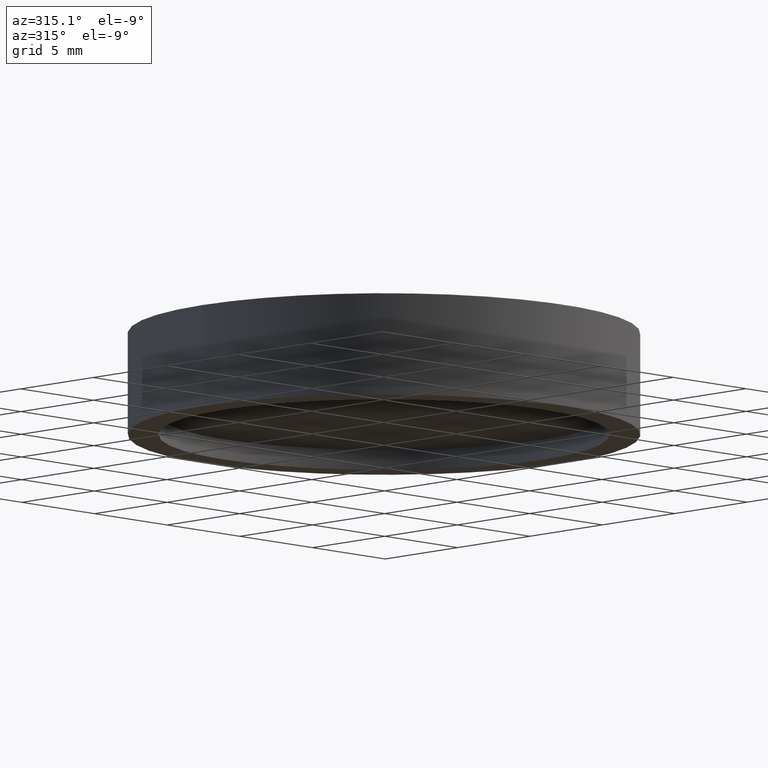
[diagram: clean part render]
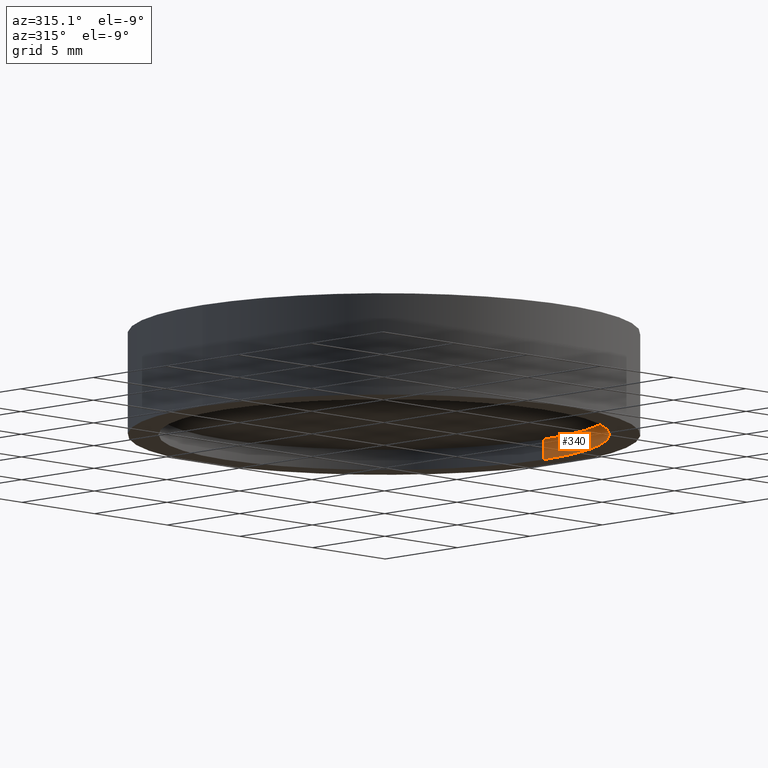
[diagram: same view with one face highlighted and labeled with its STEP entity id]
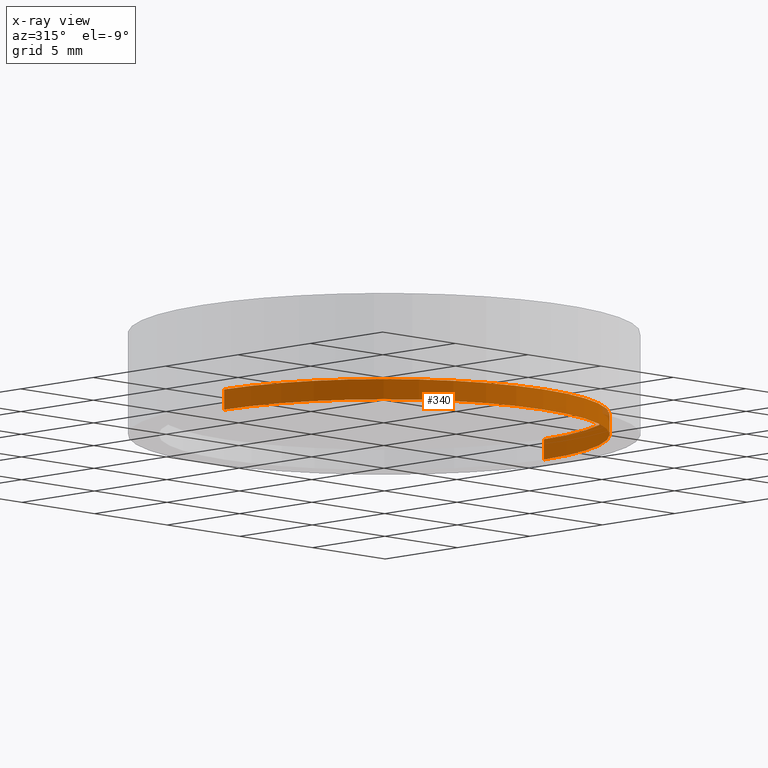
[diagram: x-ray of the same camera — body ghosted, the highlighted face saturated]
A machine part, auxiliary view. The second image highlights one B-rep face of the part: STEP entity #340.
The next image is the same camera in x-ray: the body ghosted, the highlighted face saturated — about 1% of this face is hidden behind the body in this view.
In plain terms, the highlighted cylindrical surface (partial cylindrical patch) has radius 11 mm, axis along (-0, -0, -1).
Its self-contained STEP definition (entity closure, byte-faithful):
#4 = DIRECTION ( 'NONE',  ( -0.0000000000000000000, -0.0000000000000000000, -1.000000000000000000 ) ) ;
#19 = VECTOR ( 'NONE', #591, 1000.000000000000000 ) ;
#46 = CIRCLE ( 'NONE', #95, 11.00000000000000000 ) ;
#75 = DIRECTION ( 'NONE',  ( -1.000000000000000000, 0.0000000000000000000, 0.0000000000000000000 ) ) ;
#95 = AXIS2_PLACEMENT_3D ( 'NONE', #130, #516, #282 ) ;
#111 = EDGE_CURVE ( 'NONE', #714, #377, #594, .T. ) ;
#130 = CARTESIAN_POINT ( 'NONE',  ( 0.0000000000000000000, 0.0000000000000000000, -0.6190000000000003300 ) ) ;
#139 = LINE ( 'NONE', #610, #712 ) ;
#172 = CARTESIAN_POINT ( 'NONE',  ( -11.00000000000000000, 0.0000000000000000000, -0.6190000000000003300 ) ) ;
#204 = ORIENTED_EDGE ( 'NONE', *, *, #221, .F. ) ;
#221 = EDGE_CURVE ( 'NONE', #461, #485, #139, .T. ) ;
#249 = ORIENTED_EDGE ( 'NONE', *, *, #532, .T. ) ;
#260 = EDGE_LOOP ( 'NONE', ( #313, #346, #249, #204 ) ) ;
#276 = CARTESIAN_POINT ( 'NONE',  ( -11.00000000000000000, 0.0000000000000000000, 0.3809999999999997300 ) ) ;
#282 = DIRECTION ( 'NONE',  ( -1.000000000000000000, 0.0000000000000000000, 0.0000000000000000000 ) ) ;
#297 = CYLINDRICAL_SURFACE ( 'NONE', #507, 11.00000000000000000 ) ;
#313 = ORIENTED_EDGE ( 'NONE', *, *, #567, .F. ) ;
#340 = ADVANCED_FACE ( 'NONE', ( #566 ), #297, .F. ) ;
#344 = CARTESIAN_POINT ( 'NONE',  ( 0.0000000000000000000, 0.0000000000000000000, 0.3809999999999997300 ) ) ;
#346 = ORIENTED_EDGE ( 'NONE', *, *, #111, .T. ) ;
#377 = VERTEX_POINT ( 'NONE', #396 ) ;
#396 = CARTESIAN_POINT ( 'NONE',  ( 11.00000000000000000, 1.347111479062088400E-015, -0.6190000000000003300 ) ) ;
#427 = CIRCLE ( 'NONE', #608, 11.00000000000000000 ) ;
#433 = DIRECTION ( 'NONE',  ( -0.0000000000000000000, -0.0000000000000000000, -1.000000000000000000 ) ) ;
#461 = VERTEX_POINT ( 'NONE', #276 ) ;
#463 = DIRECTION ( 'NONE',  ( -1.000000000000000000, 0.0000000000000000000, 0.0000000000000000000 ) ) ;
#485 = VERTEX_POINT ( 'NONE', #172 ) ;
#507 = AXIS2_PLACEMENT_3D ( 'NONE', #344, #4, #75 ) ;
#510 = CARTESIAN_POINT ( 'NONE',  ( 0.0000000000000000000, 0.0000000000000000000, 0.3809999999999997300 ) ) ;
#516 = DIRECTION ( 'NONE',  ( 0.0000000000000000000, 0.0000000000000000000, -1.000000000000000000 ) ) ;
#532 = EDGE_CURVE ( 'NONE', #377, #485, #46, .T. ) ;
#566 = FACE_OUTER_BOUND ( 'NONE', #260, .T. ) ;
#567 = EDGE_CURVE ( 'NONE', #714, #461, #427, .T. ) ;
#591 = DIRECTION ( 'NONE',  ( -0.0000000000000000000, -0.0000000000000000000, -1.000000000000000000 ) ) ;
#594 = LINE ( 'NONE', #711, #19 ) ;
#608 = AXIS2_PLACEMENT_3D ( 'NONE', #510, #629, #463 ) ;
#610 = CARTESIAN_POINT ( 'NONE',  ( -11.00000000000000000, 0.0000000000000000000, 0.3809999999999997300 ) ) ;
#629 = DIRECTION ( 'NONE',  ( 0.0000000000000000000, 0.0000000000000000000, -1.000000000000000000 ) ) ;
#685 = CARTESIAN_POINT ( 'NONE',  ( 11.00000000000000000, 1.347111479062088400E-015, 0.3809999999999997300 ) ) ;
#711 = CARTESIAN_POINT ( 'NONE',  ( 11.00000000000000000, 1.347111479062088400E-015, 0.3809999999999997300 ) ) ;
#712 = VECTOR ( 'NONE', #433, 1000.000000000000000 ) ;
#714 = VERTEX_POINT ( 'NONE', #685 ) ;